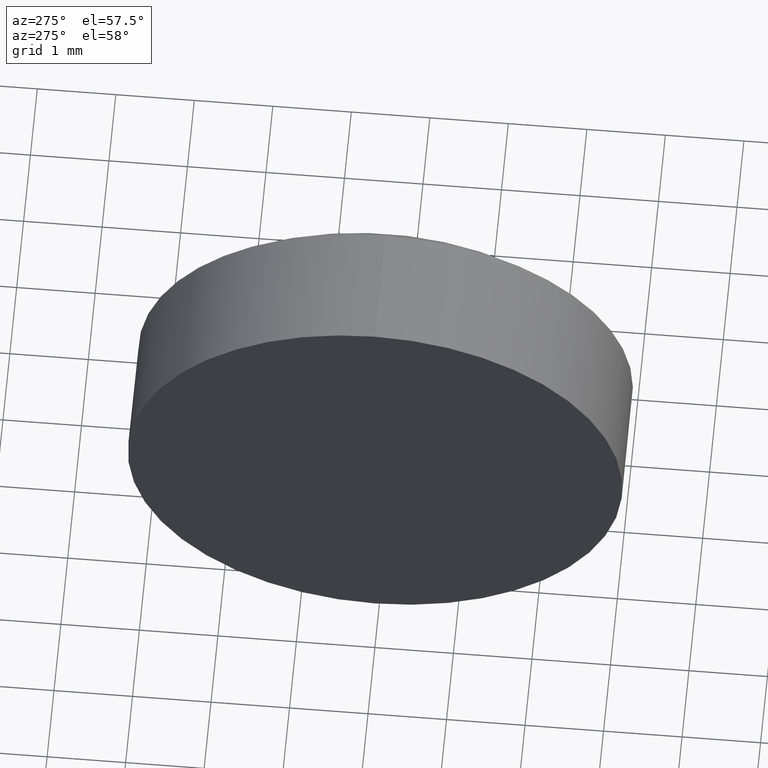
[diagram: clean part render]
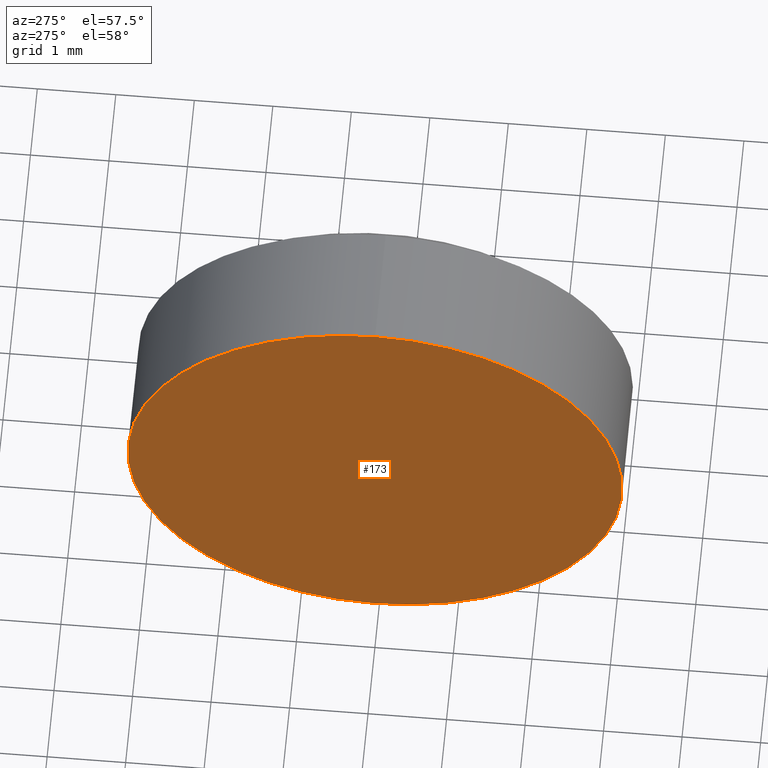
[diagram: same view with one face highlighted and labeled with its STEP entity id]
A machine part, auxiliary view. The second image highlights one B-rep face of the part: STEP entity #173.
In plain terms, the highlighted planar face has unit normal (1, 0, 0).
Its self-contained STEP definition (entity closure, byte-faithful):
#2 = DIRECTION ( 'NONE',  ( 1.000000000000000000, 0.0000000000000000000, 0.0000000000000000000 ) ) ;
#5 = ORIENTED_EDGE ( 'NONE', *, *, #133, .T. ) ;
#11 = CARTESIAN_POINT ( 'NONE',  ( 351.5720176784386700, 25.04791477200547300, 0.0000000000000000000 ) ) ;
#16 = CIRCLE ( 'NONE', #55, 3.149999999999996400 ) ;
#17 = DIRECTION ( 'NONE',  ( -1.000000000000000000, -0.0000000000000000000, -0.0000000000000000000 ) ) ;
#24 = VERTEX_POINT ( 'NONE', #51 ) ;
#27 = DIRECTION ( 'NONE',  ( 0.0000000000000000000, 0.0000000000000000000, 1.000000000000000000 ) ) ;
#28 = CIRCLE ( 'NONE', #117, 3.149999999999996400 ) ;
#43 = FACE_OUTER_BOUND ( 'NONE', #175, .T. ) ;
#48 = EDGE_CURVE ( 'NONE', #170, #24, #16, .T. ) ;
#51 = CARTESIAN_POINT ( 'NONE',  ( 351.5720176784386700, 25.04791477200547300, -3.149999999999996400 ) ) ;
#55 = AXIS2_PLACEMENT_3D ( 'NONE', #11, #80, #27 ) ;
#57 = PLANE ( 'NONE',  #94 ) ;
#58 = DIRECTION ( 'NONE',  ( 0.0000000000000000000, 0.0000000000000000000, -1.000000000000000000 ) ) ;
#80 = DIRECTION ( 'NONE',  ( -1.000000000000000000, -0.0000000000000000000, -0.0000000000000000000 ) ) ;
#94 = AXIS2_PLACEMENT_3D ( 'NONE', #140, #2, #58 ) ;
#102 = CARTESIAN_POINT ( 'NONE',  ( 351.5720176784386700, 25.04791477200547300, 0.0000000000000000000 ) ) ;
#117 = AXIS2_PLACEMENT_3D ( 'NONE', #102, #17, #164 ) ;
#133 = EDGE_CURVE ( 'NONE', #24, #170, #28, .T. ) ;
#140 = CARTESIAN_POINT ( 'NONE',  ( 351.5720176784386700, 25.04791477200547300, 0.0000000000000000000 ) ) ;
#157 = ORIENTED_EDGE ( 'NONE', *, *, #48, .T. ) ;
#164 = DIRECTION ( 'NONE',  ( 0.0000000000000000000, 0.0000000000000000000, 1.000000000000000000 ) ) ;
#170 = VERTEX_POINT ( 'NONE', #178 ) ;
#173 = ADVANCED_FACE ( 'NONE', ( #43 ), #57, .F. ) ;
#175 = EDGE_LOOP ( 'NONE', ( #157, #5 ) ) ;
#178 = CARTESIAN_POINT ( 'NONE',  ( 351.5720176784386700, 25.04791477200547300, 3.149999999999996400 ) ) ;